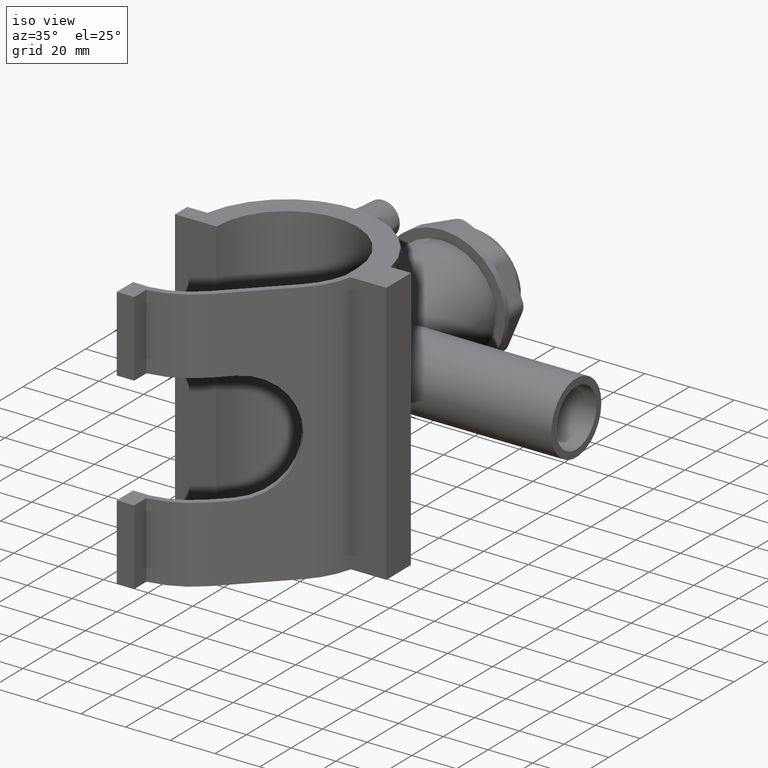
[diagram: clean part render]
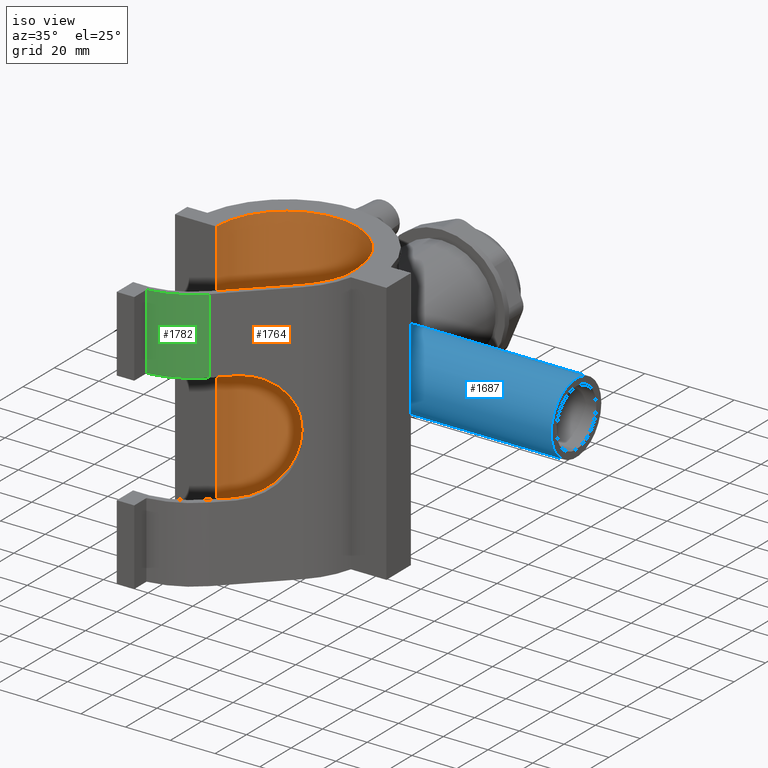
[diagram: same view with three faces highlighted in distinct colors, each labeled with its STEP entity id]
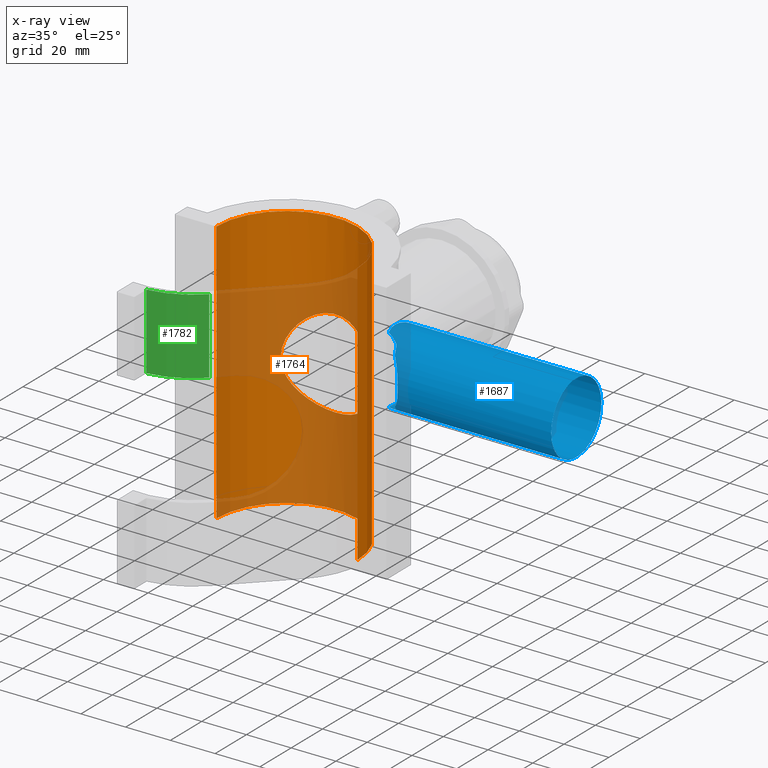
[diagram: x-ray of the same camera — body ghosted, the three highlighted faces saturated]
A machine part, iso view with three faces highlighted in distinct colors.
The next image is the same camera in x-ray (body ghosted, the three faces saturated) — at least one of them is partly hidden behind the body in this view.
Their STEP definitions:

[orange] entity #1764 — the highlighted cylindrical surface (partial cylindrical patch) has radius 31.5 mm, axis along (0, 0, 1).
#103=LINE('',#3478,#247);
#104=LINE('',#3482,#248);
#247=VECTOR('',#2329,118.);
#248=VECTOR('',#2332,118.);
#342=FACE_BOUND('',#614,.T.);
#343=B_SPLINE_CURVE_WITH_KNOTS('',3,(#2493,#2494,#2495,#2496,#2497,#2498,
#2499,#2500,#2501,#2502,#2503,#2504,#2505,#2506,#2507,#2508,#2509,#2510,
#2511,#2512,#2513,#2514,#2515,#2516,#2517,#2518,#2519,#2520,#2521,#2522,
#2523,#2524,#2525,#2526,#2527,#2528,#2529,#2530,#2531,#2532,#2533,#2534,
#2535,#2536,#2537,#2538,#2539,#2540,#2541,#2542,#2543,#2544,#2545,#2546,
#2547,#2548,#2549,#2550,#2551,#2552,#2553,#2554,#2555,#2556,#2557,#2558),
 .UNSPECIFIED.,.T.,.F.,(4,2,2,2,2,2,2,2,2,2,2,2,2,2,2,2,2,2,2,2,2,2,2,2,
2,2,2,2,2,2,2,2,4),(0.,0.388758506736601,0.777517013473201,1.1662755202098,
1.5550340269464,1.94059455902645,2.3261550911065,2.71171562318655,3.0972761552666,
3.48283668734665,3.8683972194267,4.25395775150675,4.6395182835868,5.0282767903234,
5.41703529706001,5.80579380379661,6.19455231053321,6.58331081726981,6.97206932400641,
7.36082783074301,7.74958633747961,8.13514686955966,8.52070740163971,8.90626793371976,
9.29182846579981,9.67738899787986,10.0629495299599,10.44851006204,10.83407059412,
11.2228291008566,11.6115876075932,12.0003461143298,12.3891046210664),
 .UNSPECIFIED.);
#393=CYLINDRICAL_SURFACE('',#1933,31.5);
#481=FACE_OUTER_BOUND('',#613,.T.);
#613=EDGE_LOOP('',(#1473,#1474,#1475,#1476));
#614=EDGE_LOOP('',(#1477));
#699=CIRCLE('',#1930,31.5);
#700=CIRCLE('',#1932,31.5);
#718=VERTEX_POINT('',#2492);
#831=VERTEX_POINT('',#3472);
#833=VERTEX_POINT('',#3476);
#834=VERTEX_POINT('',#3480);
#835=VERTEX_POINT('',#3481);
#883=EDGE_CURVE('',#718,#718,#343,.T.);
#1050=EDGE_CURVE('',#831,#833,#103,.T.);
#1051=EDGE_CURVE('',#834,#835,#104,.T.);
#1057=EDGE_CURVE('',#831,#835,#699,.T.);
#1058=EDGE_CURVE('',#834,#833,#700,.T.);
#1473=ORIENTED_EDGE('',*,*,#1051,.T.);
#1474=ORIENTED_EDGE('',*,*,#1057,.F.);
#1475=ORIENTED_EDGE('',*,*,#1050,.T.);
#1476=ORIENTED_EDGE('',*,*,#1058,.F.);
#1477=ORIENTED_EDGE('',*,*,#883,.T.);
#1764=ADVANCED_FACE('',(#481,#342),#393,.F.);
#1930=AXIS2_PLACEMENT_3D('',#3491,#2340,#2341);
#1932=AXIS2_PLACEMENT_3D('',#3493,#2344,#2345);
#1933=AXIS2_PLACEMENT_3D('',#3496,#2348,#2349);
#2329=DIRECTION('',(0.,0.,-1.));
#2332=DIRECTION('',(0.,0.,1.));
#2340=DIRECTION('center_axis',(0.,0.,-1.));
#2341=DIRECTION('ref_axis',(-1.,0.,0.));
#2344=DIRECTION('center_axis',(0.,0.,1.));
#2345=DIRECTION('ref_axis',(-1.,0.,0.));
#2348=DIRECTION('center_axis',(0.,0.,1.));
#2349=DIRECTION('ref_axis',(-1.,0.,0.));
#2492=CARTESIAN_POINT('',(-19.845,24.462746677346,2.08166817117217E-14));
#2493=CARTESIAN_POINT('Ctrl Pts',(-19.845,24.462746677346,2.08166817117217E-14));
#2494=CARTESIAN_POINT('Ctrl Pts',(-19.845,24.462746677346,1.29586168912202));
#2495=CARTESIAN_POINT('Ctrl Pts',(-19.7162464147487,24.5688785811249,2.61638531164125));
#2496=CARTESIAN_POINT('Ctrl Pts',(-19.1941639837465,24.9788757839387,5.21151751227536));
#2497=CARTESIAN_POINT('Ctrl Pts',(-18.8011282169561,25.2816290379749,6.48636060727943));
#2498=CARTESIAN_POINT('Ctrl Pts',(-17.7801698217072,26.0097799289527,8.9118449313107));
#2499=CARTESIAN_POINT('Ctrl Pts',(-17.1514022462631,26.4346933605469,10.0650444795974));
#2500=CARTESIAN_POINT('Ctrl Pts',(-15.7099367643824,27.3159568534499,12.1931786846049));
#2501=CARTESIAN_POINT('Ctrl Pts',(-14.8969062909056,27.7716456326523,13.1681618543885));
#2502=CARTESIAN_POINT('Ctrl Pts',(-13.175272285157,28.6282910079968,14.8897958601371));
#2503=CARTESIAN_POINT('Ctrl Pts',(-12.2040294078323,29.062117956092,15.7015934459943));
#2504=CARTESIAN_POINT('Ctrl Pts',(-10.0751066852408,29.8669928037551,17.1455707382443));
#2505=CARTESIAN_POINT('Ctrl Pts',(-8.91730590757387,30.237546882042,17.7778473586437));
#2506=CARTESIAN_POINT('Ctrl Pts',(-6.48145854313547,30.8515524188282,18.8032154114782));
#2507=CARTESIAN_POINT('Ctrl Pts',(-5.20088182115067,31.0952512369102,19.1971414013577));
#2508=CARTESIAN_POINT('Ctrl Pts',(-2.60278584334976,31.4195691737895,19.7181367163949));
#2509=CARTESIAN_POINT('Ctrl Pts',(-1.28520177360017,31.5,19.845));
#2510=CARTESIAN_POINT('Ctrl Pts',(1.28520177360017,31.5,19.845));
#2511=CARTESIAN_POINT('Ctrl Pts',(2.60278584334976,31.4195691737895,19.7181367163949));
#2512=CARTESIAN_POINT('Ctrl Pts',(5.20088182115066,31.0952512369102,19.1971414013577));
#2513=CARTESIAN_POINT('Ctrl Pts',(6.48145854313546,30.8515524188282,18.8032154114782));
#2514=CARTESIAN_POINT('Ctrl Pts',(8.91730590757387,30.237546882042,17.7778473586437));
#2515=CARTESIAN_POINT('Ctrl Pts',(10.0751066852408,29.8669928037551,17.1455707382443));
#2516=CARTESIAN_POINT('Ctrl Pts',(12.2040294078323,29.062117956092,15.7015934459943));
#2517=CARTESIAN_POINT('Ctrl Pts',(13.175272285157,28.6282910079968,14.8897958601371));
#2518=CARTESIAN_POINT('Ctrl Pts',(14.8969062909056,27.7716456326523,13.1681618543885));
#2519=CARTESIAN_POINT('Ctrl Pts',(15.7099367643824,27.3159568534499,12.193178684605));
#2520=CARTESIAN_POINT('Ctrl Pts',(17.1514022462631,26.4346933605469,10.0650444795974));
#2521=CARTESIAN_POINT('Ctrl Pts',(17.7801698217072,26.0097799289527,8.9118449313107));
#2522=CARTESIAN_POINT('Ctrl Pts',(18.8011282169561,25.2816290379749,6.48636060727943));
#2523=CARTESIAN_POINT('Ctrl Pts',(19.1941639837465,24.9788757839387,5.21151751227536));
#2524=CARTESIAN_POINT('Ctrl Pts',(19.7162464147487,24.5688785811249,2.61638531164125));
#2525=CARTESIAN_POINT('Ctrl Pts',(19.845,24.4627466773459,1.29586168912202));
#2526=CARTESIAN_POINT('Ctrl Pts',(19.845,24.4627466773459,-1.29586168912198));
#2527=CARTESIAN_POINT('Ctrl Pts',(19.7162464147487,24.5688785811249,-2.6163853116412));
#2528=CARTESIAN_POINT('Ctrl Pts',(19.1941639837465,24.9788757839387,-5.21151751227531));
#2529=CARTESIAN_POINT('Ctrl Pts',(18.8011282169561,25.2816290379749,-6.48636060727939));
#2530=CARTESIAN_POINT('Ctrl Pts',(17.7801698217072,26.0097799289527,-8.91184493131065));
#2531=CARTESIAN_POINT('Ctrl Pts',(17.1514022462631,26.4346933605469,-10.0650444795973));
#2532=CARTESIAN_POINT('Ctrl Pts',(15.7099367643824,27.3159568534499,-12.1931786846049));
#2533=CARTESIAN_POINT('Ctrl Pts',(14.8969062909056,27.7716456326523,-13.1681618543884));
#2534=CARTESIAN_POINT('Ctrl Pts',(13.175272285157,28.6282910079968,-14.8897958601371));
#2535=CARTESIAN_POINT('Ctrl Pts',(12.2040294078323,29.062117956092,-15.7015934459943));
#2536=CARTESIAN_POINT('Ctrl Pts',(10.0751066852408,29.8669928037551,-17.1455707382443));
#2537=CARTESIAN_POINT('Ctrl Pts',(8.91730590757387,30.237546882042,-17.7778473586436));
#2538=CARTESIAN_POINT('Ctrl Pts',(6.48145854313547,30.8515524188282,-18.8032154114782));
#2539=CARTESIAN_POINT('Ctrl Pts',(5.20088182115066,31.0952512369102,-19.1971414013577));
#2540=CARTESIAN_POINT('Ctrl Pts',(2.60278584334976,31.4195691737895,-19.7181367163949));
#2541=CARTESIAN_POINT('Ctrl Pts',(1.28520177360017,31.5,-19.845));
#2542=CARTESIAN_POINT('Ctrl Pts',(-1.28520177360016,31.5,-19.845));
#2543=CARTESIAN_POINT('Ctrl Pts',(-2.60278584334975,31.4195691737895,-19.7181367163949));
#2544=CARTESIAN_POINT('Ctrl Pts',(-5.20088182115065,31.0952512369102,-19.1971414013577));
#2545=CARTESIAN_POINT('Ctrl Pts',(-6.48145854313544,30.8515524188282,-18.8032154114782));
#2546=CARTESIAN_POINT('Ctrl Pts',(-8.91730590757384,30.237546882042,-17.7778473586437));
#2547=CARTESIAN_POINT('Ctrl Pts',(-10.0751066852408,29.8669928037551,-17.1455707382443));
#2548=CARTESIAN_POINT('Ctrl Pts',(-12.2040294078323,29.062117956092,-15.7015934459943));
#2549=CARTESIAN_POINT('Ctrl Pts',(-13.175272285157,28.6282910079968,-14.8897958601371));
#2550=CARTESIAN_POINT('Ctrl Pts',(-14.8969062909056,27.7716456326523,-13.1681618543885));
#2551=CARTESIAN_POINT('Ctrl Pts',(-15.7099367643824,27.3159568534499,-12.1931786846049));
#2552=CARTESIAN_POINT('Ctrl Pts',(-17.1514022462631,26.4346933605469,-10.0650444795973));
#2553=CARTESIAN_POINT('Ctrl Pts',(-17.7801698217072,26.0097799289527,-8.91184493131066));
#2554=CARTESIAN_POINT('Ctrl Pts',(-18.8011282169561,25.2816290379749,-6.4863606072794));
#2555=CARTESIAN_POINT('Ctrl Pts',(-19.1941639837465,24.9788757839387,-5.21151751227533));
#2556=CARTESIAN_POINT('Ctrl Pts',(-19.7162464147487,24.5688785811249,-2.61638531164121));
#2557=CARTESIAN_POINT('Ctrl Pts',(-19.845,24.462746677346,-1.29586168912199));
#2558=CARTESIAN_POINT('Ctrl Pts',(-19.845,24.462746677346,2.05391259555654E-14));
#3472=CARTESIAN_POINT('',(-31.4999603174353,0.0500000000000078,59.));
#3476=CARTESIAN_POINT('',(-31.4999603174353,0.0500000000000078,-59.));
#3478=CARTESIAN_POINT('',(-31.4999603174353,0.0500000000000078,0.));
#3480=CARTESIAN_POINT('',(31.4999603174353,0.0500000000000078,-59.));
#3481=CARTESIAN_POINT('',(31.4999603174353,0.0500000000000078,59.));
#3482=CARTESIAN_POINT('',(31.4999603174353,0.0500000000000078,0.));
#3491=CARTESIAN_POINT('Origin',(0.,0.,59.));
#3493=CARTESIAN_POINT('Origin',(0.,0.,-59.));
#3496=CARTESIAN_POINT('Origin',(0.,0.,0.));

[blue] entity #1687 — the highlighted cylindrical surface (bore or boss wall) has radius 16 mm, axis along (1, 0, 0).
#321=FACE_BOUND('',#516,.T.);
#345=B_SPLINE_CURVE_WITH_KNOTS('',3,(#2616,#2617,#2618,#2619,#2620,#2621),
 .UNSPECIFIED.,.F.,.F.,(4,2,4),(5.3788903082979,5.89760679406489,6.06823611230361),
 .UNSPECIFIED.);
#346=B_SPLINE_CURVE_WITH_KNOTS('',3,(#2623,#2624,#2625,#2626,#2627,#2628,
#2629,#2630),.UNSPECIFIED.,.F.,.F.,(4,2,2,4),(-0.123703140111433,-0.0712798632180085,
-0.0187180747594232,0.),.UNSPECIFIED.);
#347=B_SPLINE_CURVE_WITH_KNOTS('',3,(#2632,#2633,#2634,#2635,#2636,#2637),
 .UNSPECIFIED.,.F.,.F.,(4,2,4),(8.53235470649383,8.66449247583444,8.8955240734244),
 .UNSPECIFIED.);
#348=B_SPLINE_CURVE_WITH_KNOTS('',3,(#2639,#2640,#2641,#2642,#2643,#2644,
#2645,#2646,#2647,#2648,#2649,#2650,#2651,#2652,#2653,#2654,#2655,#2656,
#2657,#2658,#2659,#2660),.UNSPECIFIED.,.F.,.F.,(4,2,2,2,2,2,2,2,2,2,4),
(2.10486046959943,2.31314791551399,2.55555376750789,2.79795961950179,3.04036547149569,
3.28277132348959,3.52517717548349,3.76758302747739,4.00998887947129,4.25239473146519,
4.46068217737975),.UNSPECIFIED.);
#349=B_SPLINE_CURVE_WITH_KNOTS('',3,(#2662,#2663,#2664,#2665,#2666,#2667),
 .UNSPECIFIED.,.F.,.F.,(4,2,4),(5.96299509353351,6.19402669112422,6.32616446046483),
 .UNSPECIFIED.);
#350=B_SPLINE_CURVE_WITH_KNOTS('',3,(#2669,#2670,#2671,#2672,#2673,#2674,
#2675,#2676,#2677,#2678,#2679,#2680,#2681),.UNSPECIFIED.,.F.,.F.,(4,3,3,
3,4),(-0.124015677811018,-0.0838380528929241,-0.062737038101134,-0.0414744952231718,
0.),.UNSPECIFIED.);
#351=B_SPLINE_CURVE_WITH_KNOTS('',3,(#2683,#2684,#2685,#2686,#2687,#2688),
 .UNSPECIFIED.,.F.,.F.,(4,2,4),(1.10421717347611,1.27484649171483,1.79356297712107),
 .UNSPECIFIED.);
#352=B_SPLINE_CURVE_WITH_KNOTS('',3,(#2689,#2690,#2691,#2692,#2693,#2694,
#2695,#2696,#2697,#2698,#2699,#2700,#2701,#2702,#2703,#2704,#2705,#2706,
#2707,#2708,#2709,#2710,#2711,#2712,#2713,#2714,#2715,#2716,#2717,#2718,
#2719,#2720,#2721,#2722,#2723,#2724,#2725,#2726,#2727),.UNSPECIFIED.,.F.,
 .F.,(4,2,2,2,2,2,2,2,2,2,2,2,2,2,2,2,3,2,4),(-5.55075996909969,-5.33544007842765,
-5.01999180979183,-4.70454354115601,-4.38909527252019,-3.75819873524854,
-3.44614802766039,-3.13409732007223,-2.82204661248407,-2.50999590489592,
-2.19794519730776,-1.8858944897196,-1.57384378213144,-1.26179307454329,
-0.630896537271644,-0.315448268635823,0.,0.315448268635822,0.530768159307861),
 .UNSPECIFIED.);
#372=CYLINDRICAL_SURFACE('',#1800,16.);
#404=FACE_OUTER_BOUND('',#515,.T.);
#515=EDGE_LOOP('',(#1134,#1135,#1136,#1137,#1138,#1139,#1140,#1141));
#516=EDGE_LOOP('',(#1142));
#644=CIRCLE('',#1801,16.);
#721=VERTEX_POINT('',#2614);
#722=VERTEX_POINT('',#2615);
#723=VERTEX_POINT('',#2622);
#724=VERTEX_POINT('',#2631);
#725=VERTEX_POINT('',#2638);
#726=VERTEX_POINT('',#2661);
#727=VERTEX_POINT('',#2668);
#728=VERTEX_POINT('',#2682);
#729=VERTEX_POINT('',#2728);
#886=EDGE_CURVE('',#721,#722,#345,.T.);
#887=EDGE_CURVE('',#723,#721,#346,.T.);
#888=EDGE_CURVE('',#724,#723,#347,.T.);
#889=EDGE_CURVE('',#725,#724,#348,.T.);
#890=EDGE_CURVE('',#726,#725,#349,.T.);
#891=EDGE_CURVE('',#727,#726,#350,.T.);
#892=EDGE_CURVE('',#728,#727,#351,.T.);
#893=EDGE_CURVE('',#722,#728,#352,.T.);
#894=EDGE_CURVE('',#729,#729,#644,.T.);
#1134=ORIENTED_EDGE('',*,*,#886,.F.);
#1135=ORIENTED_EDGE('',*,*,#887,.F.);
#1136=ORIENTED_EDGE('',*,*,#888,.F.);
#1137=ORIENTED_EDGE('',*,*,#889,.F.);
#1138=ORIENTED_EDGE('',*,*,#890,.F.);
#1139=ORIENTED_EDGE('',*,*,#891,.F.);
#1140=ORIENTED_EDGE('',*,*,#892,.F.);
#1141=ORIENTED_EDGE('',*,*,#893,.F.);
#1142=ORIENTED_EDGE('',*,*,#894,.F.);
#1687=ADVANCED_FACE('',(#404,#321),#372,.T.);
#1800=AXIS2_PLACEMENT_3D('',#2613,#1989,#1990);
#1801=AXIS2_PLACEMENT_3D('',#2729,#1991,#1992);
#1989=DIRECTION('center_axis',(1.,0.,0.));
#1990=DIRECTION('ref_axis',(0.,1.,0.));
#1991=DIRECTION('center_axis',(1.,0.,0.));
#1992=DIRECTION('ref_axis',(0.,0.,-1.));
#2613=CARTESIAN_POINT('Origin',(49.5,43.5,0.));
#2614=CARTESIAN_POINT('',(24.637214586858,34.738241196244,13.3877400135703));
#2615=CARTESIAN_POINT('',(18.7750794460299,38.2260923434019,15.1058233153757));
#2616=CARTESIAN_POINT('Ctrl Pts',(24.637214586734,34.7382411962267,13.3877400133294));
#2617=CARTESIAN_POINT('Ctrl Pts',(23.3122027853791,35.6779721369941,14.0027576216224));
#2618=CARTESIAN_POINT('Ctrl Pts',(21.8621717077611,36.5903367124181,14.4593786966123));
#2619=CARTESIAN_POINT('Ctrl Pts',(19.815889513885,37.7014667698396,14.9152699513792));
#2620=CARTESIAN_POINT('Ctrl Pts',(19.2996193192515,37.9684599982133,15.015875937301));
#2621=CARTESIAN_POINT('Ctrl Pts',(18.7750794457152,38.2260923428891,15.1058233150089));
#2622=CARTESIAN_POINT('',(25.2997053549135,33.8899744513638,12.7924747001728));
#2623=CARTESIAN_POINT('Ctrl Pts',(25.2997053549136,33.8899744513637,12.7924747001727));
#2624=CARTESIAN_POINT('Ctrl Pts',(25.2488707431672,34.023803512744,12.8930104236474));
#2625=CARTESIAN_POINT('Ctrl Pts',(25.1764633177514,34.1566882232094,12.9894423194433));
#2626=CARTESIAN_POINT('Ctrl Pts',(25.0008901330343,34.4053864431895,13.1647716706555));
#2627=CARTESIAN_POINT('Ctrl Pts',(24.8946332617185,34.5254237035598,13.2466231734003));
#2628=CARTESIAN_POINT('Ctrl Pts',(24.7303281452568,34.6683955207815,13.3418438436452));
#2629=CARTESIAN_POINT('Ctrl Pts',(24.6848107802735,34.7044848057649,13.3656477594438));
#2630=CARTESIAN_POINT('Ctrl Pts',(24.6372145872053,34.7382411958924,13.3877400131106));
#2631=CARTESIAN_POINT('',(26.3846162556102,31.3170005757374,10.3718139705416));
#2632=CARTESIAN_POINT('Ctrl Pts',(26.3846162557725,31.3170005760332,10.3718139703537));
#2633=CARTESIAN_POINT('Ctrl Pts',(26.2549418507948,31.5978353109345,10.7016896722619));
#2634=CARTESIAN_POINT('Ctrl Pts',(26.1242200348646,31.88861778143,11.0160347793995));
#2635=CARTESIAN_POINT('Ctrl Pts',(25.7681433590757,32.7067485613963,11.8341655593658));
#2636=CARTESIAN_POINT('Ctrl Pts',(25.5325642659758,33.2769415505328,12.3319491195311));
#2637=CARTESIAN_POINT('Ctrl Pts',(25.2997053549135,33.8899744513639,12.7924747001728));
#2638=CARTESIAN_POINT('',(26.3846162556102,31.3170005757374,-10.3718139705416));
#2639=CARTESIAN_POINT('Ctrl Pts',(26.3846162552162,31.3170005758051,-10.3718139700858));
#2640=CARTESIAN_POINT('Ctrl Pts',(26.8052844017017,30.962587081162,-9.95551076472389));
#2641=CARTESIAN_POINT('Ctrl Pts',(27.1993284568547,30.6160630019647,-9.50539911944103));
#2642=CARTESIAN_POINT('Ctrl Pts',(27.9902150450956,29.8961741290558,-8.45031773159643));
#2643=CARTESIAN_POINT('Ctrl Pts',(28.3889937911674,29.516238303279,-7.81365314233074));
#2644=CARTESIAN_POINT('Ctrl Pts',(29.0881290389229,28.827487590554,-6.42776372370555));
#2645=CARTESIAN_POINT('Ctrl Pts',(29.3886536061039,28.518951878248,-5.67848495501581));
#2646=CARTESIAN_POINT('Ctrl Pts',(29.8689884171297,28.0154788861244,-4.11176995229794));
#2647=CARTESIAN_POINT('Ctrl Pts',(30.0494480374907,27.8202045329656,-3.29284028586985));
#2648=CARTESIAN_POINT('Ctrl Pts',(30.2860585521214,27.5624339431388,-1.64096658786214));
#2649=CARTESIAN_POINT('Ctrl Pts',(30.342256013685,27.5,-0.808019506646334));
#2650=CARTESIAN_POINT('Ctrl Pts',(30.342256013685,27.5,0.808019506646335));
#2651=CARTESIAN_POINT('Ctrl Pts',(30.2860585521214,27.5624339431388,1.64096658786214));
#2652=CARTESIAN_POINT('Ctrl Pts',(30.0494480374907,27.8202045329656,3.29284028586986));
#2653=CARTESIAN_POINT('Ctrl Pts',(29.8689884171297,28.0154788861244,4.11176995229795));
#2654=CARTESIAN_POINT('Ctrl Pts',(29.3886536061039,28.518951878248,5.67848495501582));
#2655=CARTESIAN_POINT('Ctrl Pts',(29.0881290389229,28.827487590554,6.42776372370557));
#2656=CARTESIAN_POINT('Ctrl Pts',(28.3889937911674,29.516238303279,7.81365314233075));
#2657=CARTESIAN_POINT('Ctrl Pts',(27.9902150450956,29.8961741290558,8.45031773159644));
#2658=CARTESIAN_POINT('Ctrl Pts',(27.1993284568547,30.6160630019647,9.50539911944104));
#2659=CARTESIAN_POINT('Ctrl Pts',(26.8052844017017,30.962587081162,9.9555107647239));
#2660=CARTESIAN_POINT('Ctrl Pts',(26.3846162552162,31.3170005758052,10.3718139700858));
#2661=CARTESIAN_POINT('',(25.2997053549095,33.889974451368,-12.7924747001789));
#2662=CARTESIAN_POINT('Ctrl Pts',(25.2997053549112,33.8899744513699,-12.7924747001773));
#2663=CARTESIAN_POINT('Ctrl Pts',(25.5325642659742,33.2769415505365,-12.3319491195344));
#2664=CARTESIAN_POINT('Ctrl Pts',(25.7681433590749,32.7067485613979,-11.8341655593675));
#2665=CARTESIAN_POINT('Ctrl Pts',(26.1242200348646,31.88861778143,-11.0160347793995));
#2666=CARTESIAN_POINT('Ctrl Pts',(26.2549418507948,31.5978353109345,-10.7016896722619));
#2667=CARTESIAN_POINT('Ctrl Pts',(26.3846162557725,31.3170005760332,-10.3718139703537));
#2668=CARTESIAN_POINT('',(24.637214584821,34.7382411983057,-13.3877400162662));
#2669=CARTESIAN_POINT('Ctrl Pts',(24.6374962975596,34.7379680487887,-13.3877287190789));
#2670=CARTESIAN_POINT('Ctrl Pts',(24.7393798139904,34.6657404306015,-13.340422382174));
#2671=CARTESIAN_POINT('Ctrl Pts',(24.8322642994706,34.5822862741821,-13.2849697878224));
#2672=CARTESIAN_POINT('Ctrl Pts',(24.9143528004224,34.4947597831317,-13.22533028907));
#2673=CARTESIAN_POINT('Ctrl Pts',(24.9574651216796,34.4487914665352,-13.1940080307754));
#2674=CARTESIAN_POINT('Ctrl Pts',(24.9981547444923,34.4010557260816,-13.1611264470415));
#2675=CARTESIAN_POINT('Ctrl Pts',(25.0361103486662,34.3520723625706,-13.1269589060153));
#2676=CARTESIAN_POINT('Ctrl Pts',(25.0743565026626,34.3027140318345,-13.0925298127574));
#2677=CARTESIAN_POINT('Ctrl Pts',(25.1098291823583,34.2520875607126,-13.056797287327));
#2678=CARTESIAN_POINT('Ctrl Pts',(25.1423628095062,34.2007562435217,-13.0201216724238));
#2679=CARTESIAN_POINT('Ctrl Pts',(25.2058225646015,34.1006299095337,-12.9485825990477));
#2680=CARTESIAN_POINT('Ctrl Pts',(25.2595312852308,33.9957381791226,-12.8719270461577));
#2681=CARTESIAN_POINT('Ctrl Pts',(25.2997053549136,33.8899744513637,-12.7924747001727));
#2682=CARTESIAN_POINT('',(18.7750794460299,38.2260923434019,-15.1058233153757));
#2683=CARTESIAN_POINT('Ctrl Pts',(18.7750794457152,38.2260923428891,-15.1058233150089));
#2684=CARTESIAN_POINT('Ctrl Pts',(19.2996193192515,37.9684599982133,-15.015875937301));
#2685=CARTESIAN_POINT('Ctrl Pts',(19.815889513885,37.7014667698396,-14.9152699513792));
#2686=CARTESIAN_POINT('Ctrl Pts',(21.8621717066903,36.5903367129996,-14.4593786968509));
#2687=CARTESIAN_POINT('Ctrl Pts',(23.3122027833637,35.677972138265,-14.0027576222577));
#2688=CARTESIAN_POINT('Ctrl Pts',(24.6372145839695,34.7382411981873,-13.3877400146126));
#2689=CARTESIAN_POINT('Ctrl Pts',(18.775079446294,38.2260923439396,15.1058233153757));
#2690=CARTESIAN_POINT('Ctrl Pts',(18.5823334729364,38.9122668465559,15.3453879446705));
#2691=CARTESIAN_POINT('Ctrl Pts',(18.4191342242515,39.6178772157481,15.5390207782515));
#2692=CARTESIAN_POINT('Ctrl Pts',(18.1140348552735,41.380319013962,15.8949322509209));
#2693=CARTESIAN_POINT('Ctrl Pts',(18.0191427723407,42.4485057712139,16.));
#2694=CARTESIAN_POINT('Ctrl Pts',(18.0191427723407,44.5514942287861,16.));
#2695=CARTESIAN_POINT('Ctrl Pts',(18.1140348552735,45.619680986038,15.8949322509209));
#2696=CARTESIAN_POINT('Ctrl Pts',(18.4766906250977,47.7146039917547,15.4718787731554));
#2697=CARTESIAN_POINT('Ctrl Pts',(18.7433263961863,48.7415864455247,15.1541461689809));
#2698=CARTESIAN_POINT('Ctrl Pts',(19.6985743707676,51.6701016055277,13.9190221922985));
#2699=CARTESIAN_POINT('Ctrl Pts',(20.5363643713966,53.4218109047848,12.7056060931847));
#2700=CARTESIAN_POINT('Ctrl Pts',(21.6425838657018,55.5021615233724,10.6252554745971));
#2701=CARTESIAN_POINT('Ctrl Pts',(22.0141136589243,56.1550892357363,9.8447929357208));
#2702=CARTESIAN_POINT('Ctrl Pts',(22.7025697320644,57.3179866809365,8.13231059933394));
#2703=CARTESIAN_POINT('Ctrl Pts',(23.0191045933805,57.8280275081087,7.20018174577718));
#2704=CARTESIAN_POINT('Ctrl Pts',(23.5434892219924,58.6561566897867,5.23697557350605));
#2705=CARTESIAN_POINT('Ctrl Pts',(23.7515781739886,58.974924496994,4.20381129216859));
#2706=CARTESIAN_POINT('Ctrl Pts',(24.0286627842971,59.3969323341189,2.10543580777605));
#2707=CARTESIAN_POINT('Ctrl Pts',(24.0975,59.5,1.04016902529386));
#2708=CARTESIAN_POINT('Ctrl Pts',(24.0975,59.5,-1.04016902529385));
#2709=CARTESIAN_POINT('Ctrl Pts',(24.0286627842971,59.3969323341189,-2.10543580777604));
#2710=CARTESIAN_POINT('Ctrl Pts',(23.7515781739886,58.974924496994,-4.20381129216857));
#2711=CARTESIAN_POINT('Ctrl Pts',(23.5434892219924,58.6561566897867,-5.23697557350603));
#2712=CARTESIAN_POINT('Ctrl Pts',(23.0191045933805,57.8280275081087,-7.20018174577716));
#2713=CARTESIAN_POINT('Ctrl Pts',(22.7025697320644,57.3179866809365,-8.13231059933393));
#2714=CARTESIAN_POINT('Ctrl Pts',(22.0141136589243,56.1550892357363,-9.84479293572079));
#2715=CARTESIAN_POINT('Ctrl Pts',(21.6425838657018,55.5021615233724,-10.6252554745971));
#2716=CARTESIAN_POINT('Ctrl Pts',(20.5363643713966,53.4218109047848,-12.7056060931847));
#2717=CARTESIAN_POINT('Ctrl Pts',(19.6985743707676,51.6701016055277,-13.9190221922985));
#2718=CARTESIAN_POINT('Ctrl Pts',(18.7433263961863,48.7415864455247,-15.1541461689809));
#2719=CARTESIAN_POINT('Ctrl Pts',(18.4766906250977,47.7146039917547,-15.4718787731554));
#2720=CARTESIAN_POINT('Ctrl Pts',(18.1140348552735,45.619680986038,-15.8949322509209));
#2721=CARTESIAN_POINT('Ctrl Pts',(18.0191427723407,44.5514942287861,-16.));
#2722=CARTESIAN_POINT('Ctrl Pts',(18.0191427723407,43.5,-16.));
#2723=CARTESIAN_POINT('Ctrl Pts',(18.0191427723407,42.4485057712139,-16.));
#2724=CARTESIAN_POINT('Ctrl Pts',(18.1140348552735,41.3803190139621,-15.8949322509209));
#2725=CARTESIAN_POINT('Ctrl Pts',(18.4191342242515,39.6178772157482,-15.5390207782515));
#2726=CARTESIAN_POINT('Ctrl Pts',(18.5823334729364,38.912266846556,-15.3453879446706));
#2727=CARTESIAN_POINT('Ctrl Pts',(18.775079446294,38.2260923439396,-15.1058233153757));
#2728=CARTESIAN_POINT('',(99.,59.5,0.));
#2729=CARTESIAN_POINT('Origin',(99.,43.5,0.));

[green] entity #1782 — the highlighted cylindrical surface (partial cylindrical patch) has radius 34.9751 mm, axis along (0, 0, -1).
#143=LINE('',#3583,#287);
#146=LINE('',#3590,#290);
#287=VECTOR('',#2429,33.8);
#290=VECTOR('',#2436,33.8);
#398=CYLINDRICAL_SURFACE('',#1962,34.9751164565775);
#499=FACE_OUTER_BOUND('',#632,.T.);
#632=EDGE_LOOP('',(#1559,#1560,#1561,#1562));
#701=CIRCLE('',#1937,34.9751164565775);
#712=CIRCLE('',#1963,34.9751164565775);
#841=VERTEX_POINT('',#3505);
#842=VERTEX_POINT('',#3507);
#868=VERTEX_POINT('',#3581);
#870=VERTEX_POINT('',#3589);
#1064=EDGE_CURVE('',#842,#841,#701,.T.);
#1102=EDGE_CURVE('',#868,#841,#143,.T.);
#1105=EDGE_CURVE('',#870,#842,#146,.T.);
#1108=EDGE_CURVE('',#870,#868,#712,.T.);
#1559=ORIENTED_EDGE('',*,*,#1064,.T.);
#1560=ORIENTED_EDGE('',*,*,#1102,.F.);
#1561=ORIENTED_EDGE('',*,*,#1108,.F.);
#1562=ORIENTED_EDGE('',*,*,#1105,.T.);
#1782=ADVANCED_FACE('',(#499),#398,.T.);
#1937=AXIS2_PLACEMENT_3D('',#3508,#2359,#2360);
#1962=AXIS2_PLACEMENT_3D('',#3594,#2442,#2443);
#1963=AXIS2_PLACEMENT_3D('',#3595,#2444,#2445);
#2359=DIRECTION('center_axis',(1.5576314092739E-16,1.55763140557486E-16,
1.));
#2360=DIRECTION('ref_axis',(-0.119193476174969,-0.992871046630592,0.));
#2429=DIRECTION('',(0.,0.,-1.));
#2436=DIRECTION('',(0.,0.,-1.));
#2442=DIRECTION('center_axis',(0.,0.,-1.));
#2443=DIRECTION('ref_axis',(-0.119193476174969,-0.992871046630592,0.));
#2444=DIRECTION('center_axis',(0.,0.,1.));
#2445=DIRECTION('ref_axis',(-0.119193476174969,-0.992871046630592,0.));
#3505=CARTESIAN_POINT('',(-1.1746235539789E-7,-49.4622840972015,25.2));
#3507=CARTESIAN_POINT('',(-21.0749478174158,-59.514629718263,25.2));
#3508=CARTESIAN_POINT('Origin',(-24.731142107332,-24.7311420486008,25.2));
#3581=CARTESIAN_POINT('',(-1.1746235539789E-7,-49.4622840972015,59.));
#3583=CARTESIAN_POINT('',(-1.1746235539789E-7,-49.4622840972015,59.));
#3589=CARTESIAN_POINT('',(-21.0749478174158,-59.514629718263,59.));
#3590=CARTESIAN_POINT('',(-21.0749478174158,-59.514629718263,59.));
#3594=CARTESIAN_POINT('Origin',(-24.731142107332,-24.7311420486008,59.));
#3595=CARTESIAN_POINT('Origin',(-24.731142107332,-24.7311420486008,59.));